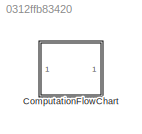
MODEL slx_0312ffb83420
KIND model
CONFIG AbsTol = auto
CONFIG EnableMultiTasking = off
CONFIG FixedStep = auto
CONFIG MaxStep = auto
CONFIG MinStep = auto
CONFIG RelTol = 1e-3
CONFIG SampleTimeConstraint = Unconstrained
CONFIG SolverName = VariableStepAuto
CONFIG StartTime = 0.0
CONFIG StopTime = 10.0
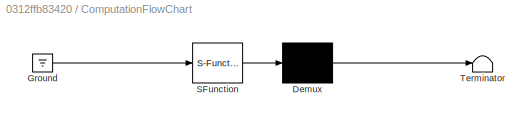
BLOCK [SubSystem] ComputationFlowChart
  ErrorFcn = Stateflow.Translate.translate
  PermitHierarchicalResolution = ExplicitOnly
  Ports = []
  RequestExecContextInheritance = off
  SFBlockType = Chart
  TreatAsAtomicUnit = on
BLOCK [Demux] ComputationFlowChart/ Demux 
  Outputs = 1
  Ports = [1, 1]
BLOCK [Ground] ComputationFlowChart/ Ground 
BLOCK [S-Function] ComputationFlowChart/ SFunction 
  EnableBusSupport = off
  FunctionName = sf_sfun
  PortCounts = [1 1]
  Ports = [1, 1]
  SFcnIsStateOwnerBlock = off
  SFunctionDeploymentMode = off
  Tag = Stateflow S-Function 3
BLOCK [Terminator] ComputationFlowChart/ Terminator 
CHART ComputationFlowChart states=6 transitions=7
  STATE_LABEL 'Wait/\n% AXI4\nburst_start = 0;\nburst_length = 0;\nfrom_ddr_to_ram = 0;\n%PE\nPE_en = 0;'
  STATE_LABEL 'Idel/'
  STATE_LABEL 'Start/\n% AXI4\nburst_start = 0;\nburst_length = 0;\nfrom_ddr_to_ram = 0;\n%PE\nPE_en = 0;\n'
  STATE_LABEL 'Ex_Mem_RD/\n% AXI4\nburst_start = 1;\nburst_length = param_burst_length;\nfrom_ddr_to_ram = 1;\n%PE\nPE_en = 0;'
  STATE_LABEL 'Data_Convolution/\n%AXI4\nburst_start = 0;\nburst_length = param_burst_length;\nfrom_ddr_to_ram = 1;\n% PE\nPE_en = 1;'
  STATE_LABEL 'Ex_Men_WR/\n%AXI4\nburst_start = 1;\nburst_length = param_burst_length;\nfrom_ddr_to_ram = 0;\n%PE\nPE_en = 1;\n'
CHART  states=0 transitions=0
